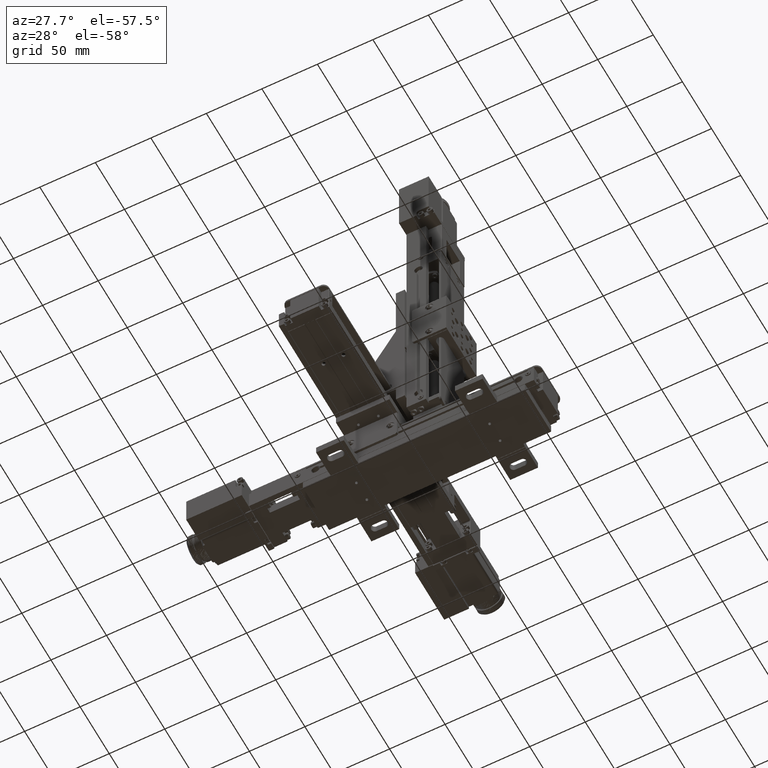
[diagram: clean part render]
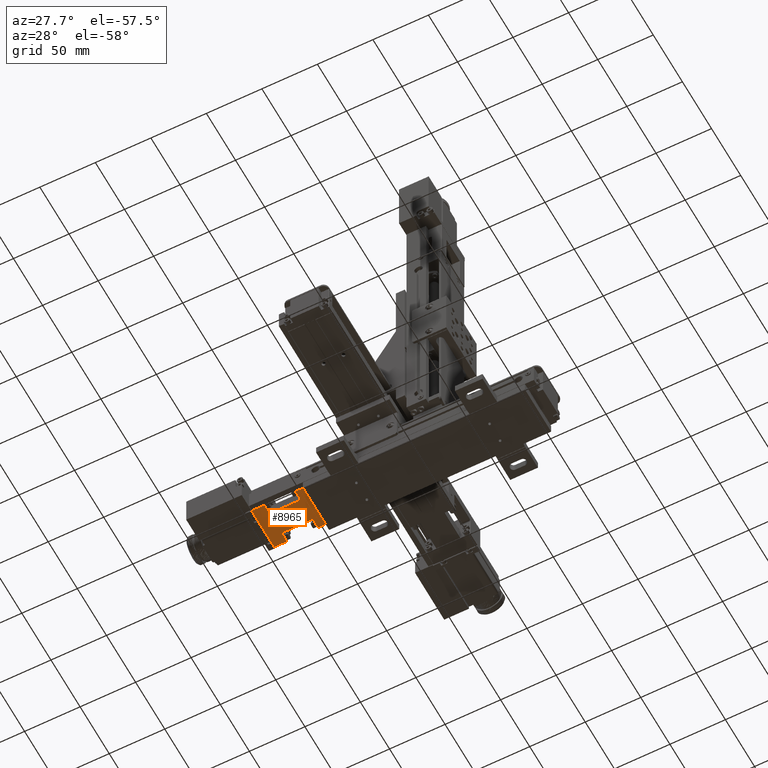
[diagram: same view with one face highlighted and labeled with its STEP entity id]
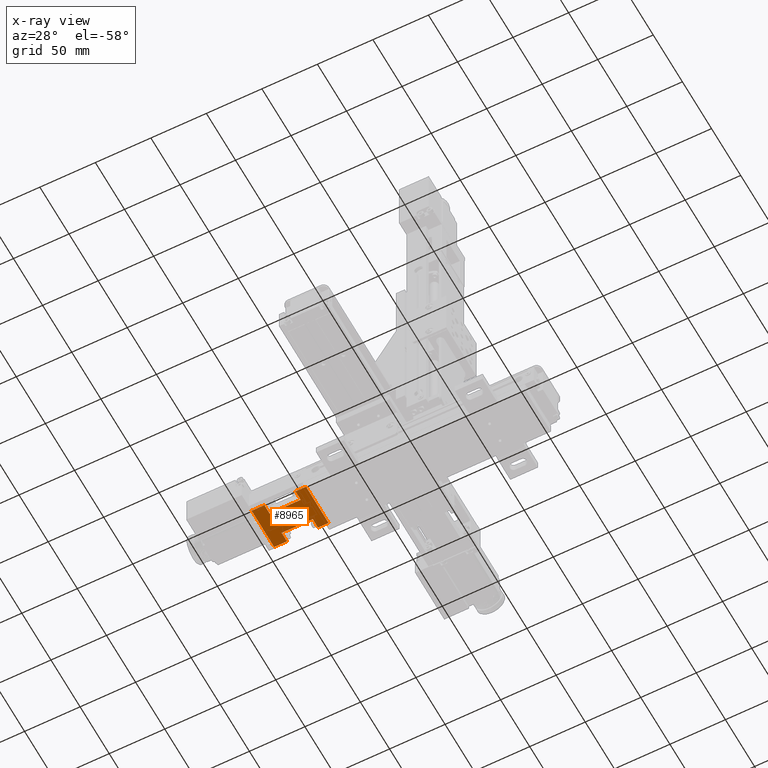
[diagram: x-ray of the same camera — body ghosted, the highlighted face saturated]
A machine part, auxiliary view. The second image highlights one B-rep face of the part: STEP entity #8965.
The next image is the same camera in x-ray: the body ghosted, the highlighted face saturated — about 0% of this face is hidden behind the body in this view.
In plain terms, the highlighted planar face has unit normal (0, 0, -1).
Its self-contained STEP definition (entity closure, byte-faithful):
#3568=PLANE('',#122681);
#8965=ADVANCED_FACE('',(#15727),#3568,.T.);
#15727=FACE_OUTER_BOUND('',#22839,.T.);
#22839=EDGE_LOOP('',(#46773,#46774,#46775,#46776,#46777,#46778,#46779,#46780,
#46781,#46782,#46783,#46784,#46785,#46786,#46787,#46788));
#46773=ORIENTED_EDGE('',*,*,#74809,.T.);
#46774=ORIENTED_EDGE('',*,*,#76029,.F.);
#46775=ORIENTED_EDGE('',*,*,#76050,.T.);
#46776=ORIENTED_EDGE('',*,*,#76051,.T.);
#46777=ORIENTED_EDGE('',*,*,#76049,.F.);
#46778=ORIENTED_EDGE('',*,*,#76000,.F.);
#46779=ORIENTED_EDGE('',*,*,#75366,.T.);
#46780=ORIENTED_EDGE('',*,*,#75933,.T.);
#46781=ORIENTED_EDGE('',*,*,#75401,.T.);
#46782=ORIENTED_EDGE('',*,*,#75432,.T.);
#46783=ORIENTED_EDGE('',*,*,#75369,.T.);
#46784=ORIENTED_EDGE('',*,*,#76037,.F.);
#46785=ORIENTED_EDGE('',*,*,#76052,.T.);
#46786=ORIENTED_EDGE('',*,*,#76053,.T.);
#46787=ORIENTED_EDGE('',*,*,#76045,.F.);
#46788=ORIENTED_EDGE('',*,*,#76004,.F.);
#74809=EDGE_CURVE('',#110917,#110916,#91393,.T.);
#75366=EDGE_CURVE('',#111314,#111313,#91738,.T.);
#75369=EDGE_CURVE('',#111316,#111317,#91741,.T.);
#75401=EDGE_CURVE('',#111336,#111333,#91771,.T.);
#75432=EDGE_CURVE('',#111333,#111316,#91779,.T.);
#75933=EDGE_CURVE('',#111313,#111336,#92081,.T.);
#76000=EDGE_CURVE('',#111314,#111708,#92122,.T.);
#76004=EDGE_CURVE('',#110917,#111709,#92124,.T.);
#76029=EDGE_CURVE('',#111719,#110916,#92138,.T.);
#76037=EDGE_CURVE('',#111721,#111317,#92143,.T.);
#76045=EDGE_CURVE('',#111709,#111722,#92148,.T.);
#76049=EDGE_CURVE('',#111708,#111723,#92151,.T.);
#76050=EDGE_CURVE('',#111719,#111725,#92152,.T.);
#76051=EDGE_CURVE('',#111725,#111723,#92153,.T.);
#76052=EDGE_CURVE('',#111721,#111726,#92154,.T.);
#76053=EDGE_CURVE('',#111726,#111722,#92155,.T.);
#91393=B_SPLINE_CURVE_WITH_KNOTS('',1,(#199540,#199541),.UNSPECIFIED.,.F.,
 .F.,(2,2),(-38.6,0.),.UNSPECIFIED.);
#91738=B_SPLINE_CURVE_WITH_KNOTS('',1,(#201146,#201147),.UNSPECIFIED.,.F.,
 .F.,(2,2),(-5.05000000000049,0.),.UNSPECIFIED.);
#91741=B_SPLINE_CURVE_WITH_KNOTS('',1,(#201152,#201153),.UNSPECIFIED.,.F.,
 .F.,(2,2),(-5.0499999999995,0.),.UNSPECIFIED.);
#91771=B_SPLINE_CURVE_WITH_KNOTS('',1,(#201222,#201223),.UNSPECIFIED.,.F.,
 .F.,(2,2),(-17.5,0.),.UNSPECIFIED.);
#91779=B_SPLINE_CURVE_WITH_KNOTS('',1,(#201321,#201322),.UNSPECIFIED.,.F.,
 .F.,(2,2),(-5.5,0.),.UNSPECIFIED.);
#92081=B_SPLINE_CURVE_WITH_KNOTS('',1,(#203039,#203040),.UNSPECIFIED.,.F.,
 .F.,(2,2),(-5.5,0.),.UNSPECIFIED.);
#92122=B_SPLINE_CURVE_WITH_KNOTS('',1,(#203199,#203200),.UNSPECIFIED.,.F.,
 .F.,(2,2),(0.,11.5),.UNSPECIFIED.);
#92124=B_SPLINE_CURVE_WITH_KNOTS('',1,(#203209,#203210),.UNSPECIFIED.,.F.,
 .F.,(2,2),(0.,9.5),.UNSPECIFIED.);
#92138=B_SPLINE_CURVE_WITH_KNOTS('',1,(#203270,#203271),.UNSPECIFIED.,.F.,
 .F.,(2,2),(0.,9.5),.UNSPECIFIED.);
#92143=B_SPLINE_CURVE_WITH_KNOTS('',1,(#203289,#203290),.UNSPECIFIED.,.F.,
 .F.,(2,2),(0.,11.5),.UNSPECIFIED.);
#92148=B_SPLINE_CURVE_WITH_KNOTS('',1,(#203308,#203309),.UNSPECIFIED.,.F.,
 .F.,(2,2),(0.,9.),.UNSPECIFIED.);
#92151=B_SPLINE_CURVE_WITH_KNOTS('',1,(#203317,#203318),.UNSPECIFIED.,.F.,
 .F.,(2,2),(0.,9.),.UNSPECIFIED.);
#92152=B_SPLINE_CURVE_WITH_KNOTS('',1,(#203319,#203320),.UNSPECIFIED.,.F.,
 .F.,(2,2),(0.,9.),.UNSPECIFIED.);
#92153=B_SPLINE_CURVE_WITH_KNOTS('',1,(#203321,#203322),.UNSPECIFIED.,.F.,
 .F.,(2,2),(0.,28.),.UNSPECIFIED.);
#92154=B_SPLINE_CURVE_WITH_KNOTS('',1,(#203323,#203324),.UNSPECIFIED.,.F.,
 .F.,(2,2),(0.,8.9999999999999),.UNSPECIFIED.);
#92155=B_SPLINE_CURVE_WITH_KNOTS('',1,(#203325,#203326),.UNSPECIFIED.,.F.,
 .F.,(2,2),(0.,28.),.UNSPECIFIED.);
#110916=VERTEX_POINT('',#165910);
#110917=VERTEX_POINT('',#165911);
#111313=VERTEX_POINT('',#166307);
#111314=VERTEX_POINT('',#166308);
#111316=VERTEX_POINT('',#166310);
#111317=VERTEX_POINT('',#166311);
#111333=VERTEX_POINT('',#166327);
#111336=VERTEX_POINT('',#166330);
#111708=VERTEX_POINT('',#166702);
#111709=VERTEX_POINT('',#166703);
#111719=VERTEX_POINT('',#166713);
#111721=VERTEX_POINT('',#166715);
#111722=VERTEX_POINT('',#166716);
#111723=VERTEX_POINT('',#166717);
#111725=VERTEX_POINT('',#166719);
#111726=VERTEX_POINT('',#166720);
#122681=AXIS2_PLACEMENT_3D('',#144520,#128856,$);
#128856=DIRECTION('',(0.,0.,-1.));
#144520=CARTESIAN_POINT('',(-44.1299973917075,2.43000436594675,9.50002053523978));
#165910=CARTESIAN_POINT('',(-49.1499973917075,-40.1499956340534,9.50002053524018));
#165911=CARTESIAN_POINT('',(-49.1499973917075,-1.54999563405335,9.5000205352399));
#166307=CARTESIAN_POINT('',(-98.1499973917075,-35.099995634053,9.50002053524021));
#166308=CARTESIAN_POINT('',(-98.1499973917075,-40.1499956340534,9.50002053524021));
#166310=CARTESIAN_POINT('',(-98.1499973917075,-6.59999563405295,9.50002053523991));
#166311=CARTESIAN_POINT('',(-98.1499973917075,-1.54999563405346,9.50002053523993));
#166327=CARTESIAN_POINT('',(-98.1499973917075,-12.0999956340529,9.50002053524001));
#166330=CARTESIAN_POINT('',(-98.1499973917075,-29.599995634053,9.50002053524011));
#166702=CARTESIAN_POINT('',(-86.6499973917075,-40.1499956340533,9.5000205352402));
#166703=CARTESIAN_POINT('',(-58.6499973917075,-1.54999563405335,9.50002053523988));
#166713=CARTESIAN_POINT('',(-58.6499973917075,-40.1499956340533,9.50002053524018));
#166715=CARTESIAN_POINT('',(-86.6499973917075,-1.54999563405345,9.5000205352399));
#166716=CARTESIAN_POINT('',(-58.6499973917075,-10.5499956340533,9.50002053524));
#166717=CARTESIAN_POINT('',(-86.6499973917075,-31.1499956340534,9.5000205352401));
#166719=CARTESIAN_POINT('',(-58.6499973917075,-31.1499956340534,9.50002053524008));
#166720=CARTESIAN_POINT('',(-86.6499973917075,-10.5499956340533,9.50002053524001));
#199540=CARTESIAN_POINT('',(-49.1499973917075,-1.54999563405335,9.5000205352399));
#199541=CARTESIAN_POINT('',(-49.1499973917075,-40.1499956340534,9.50002053524018));
#201146=CARTESIAN_POINT('',(-98.1499973917075,-40.1499956340534,9.50002053524021));
#201147=CARTESIAN_POINT('',(-98.1499973917075,-35.099995634053,9.50002053524021));
#201152=CARTESIAN_POINT('',(-98.1499973917075,-6.59999563405295,9.50002053523991));
#201153=CARTESIAN_POINT('',(-98.1499973917075,-1.54999563405346,9.50002053523993));
#201222=CARTESIAN_POINT('',(-98.1499973917075,-29.599995634053,9.50002053524011));
#201223=CARTESIAN_POINT('',(-98.1499973917075,-12.0999956340529,9.50002053524001));
#201321=CARTESIAN_POINT('',(-98.1499973917075,-12.0999956340529,9.50002053524001));
#201322=CARTESIAN_POINT('',(-98.1499973917075,-6.59999563405295,9.50002053523991));
#203039=CARTESIAN_POINT('',(-98.1499973917075,-35.099995634053,9.50002053524021));
#203040=CARTESIAN_POINT('',(-98.1499973917075,-29.599995634053,9.50002053524011));
#203199=CARTESIAN_POINT('',(-98.1499973917075,-40.1499956340534,9.50002053524021));
#203200=CARTESIAN_POINT('',(-86.6499973917075,-40.1499956340533,9.5000205352402));
#203209=CARTESIAN_POINT('',(-49.1499973917075,-1.54999563405335,9.5000205352399));
#203210=CARTESIAN_POINT('',(-58.6499973917075,-1.54999563405335,9.50002053523988));
#203270=CARTESIAN_POINT('',(-58.6499973917075,-40.1499956340533,9.50002053524018));
#203271=CARTESIAN_POINT('',(-49.1499973917075,-40.1499956340534,9.50002053524018));
#203289=CARTESIAN_POINT('',(-86.6499973917075,-1.54999563405345,9.5000205352399));
#203290=CARTESIAN_POINT('',(-98.1499973917075,-1.54999563405346,9.50002053523993));
#203308=CARTESIAN_POINT('',(-58.6499973917075,-1.54999563405335,9.50002053523988));
#203309=CARTESIAN_POINT('',(-58.6499973917075,-10.5499956340533,9.50002053524));
#203317=CARTESIAN_POINT('',(-86.6499973917075,-40.1499956340533,9.5000205352402));
#203318=CARTESIAN_POINT('',(-86.6499973917075,-31.1499956340534,9.5000205352401));
#203319=CARTESIAN_POINT('',(-58.6499973917075,-40.1499956340533,9.50002053524018));
#203320=CARTESIAN_POINT('',(-58.6499973917075,-31.1499956340534,9.50002053524008));
#203321=CARTESIAN_POINT('',(-58.6499973917075,-31.1499956340534,9.50002053524008));
#203322=CARTESIAN_POINT('',(-86.6499973917075,-31.1499956340534,9.5000205352401));
#203323=CARTESIAN_POINT('',(-86.6499973917075,-1.54999563405345,9.5000205352399));
#203324=CARTESIAN_POINT('',(-86.6499973917075,-10.5499956340533,9.50002053524001));
#203325=CARTESIAN_POINT('',(-86.6499973917075,-10.5499956340533,9.50002053524001));
#203326=CARTESIAN_POINT('',(-58.6499973917075,-10.5499956340533,9.50002053524));